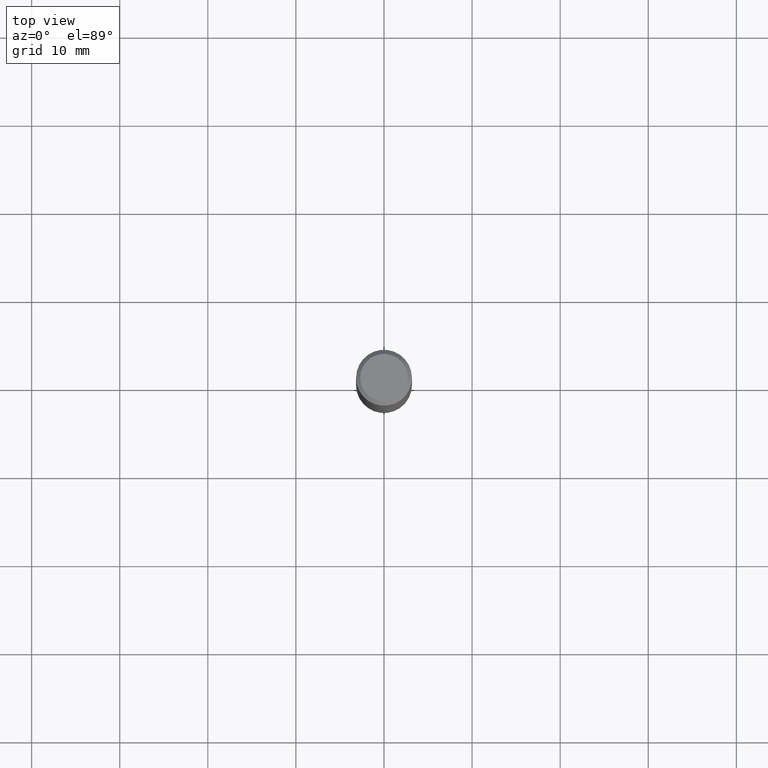
[diagram: clean part render]
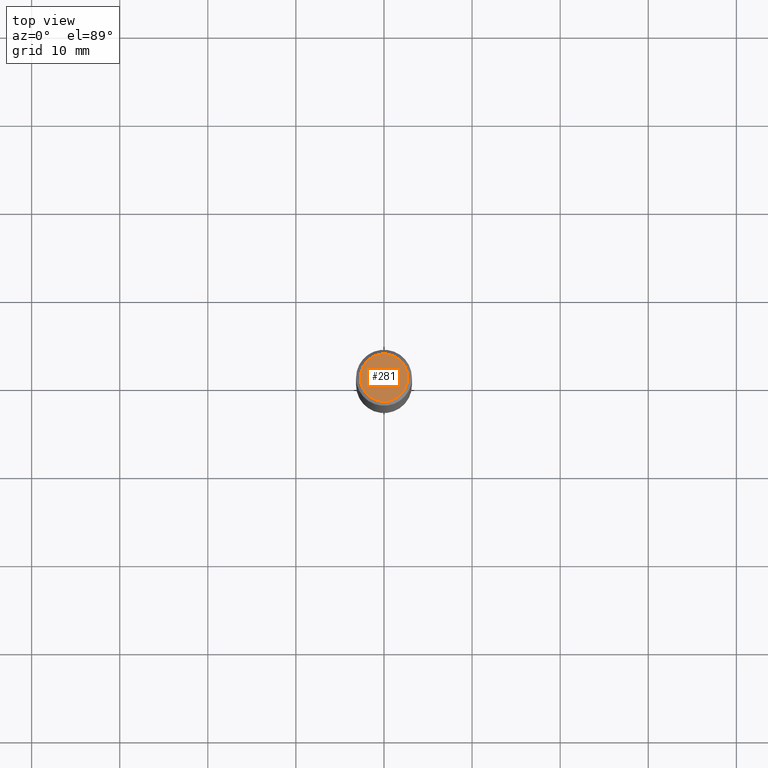
[diagram: same view with one face highlighted and labeled with its STEP entity id]
A machine part, top view. The second image highlights one B-rep face of the part: STEP entity #281.
In plain terms, the highlighted planar face has unit normal (0, -0, -1).
Its self-contained STEP definition (entity closure, byte-faithful):
#45 = CARTESIAN_POINT ( 'NONE',  ( 6.364025535057318316E-46, -9.086141822531067035E-32, -2.602374448188125350E-17 ) ) ;
#71 = PLANE ( 'NONE',  #241 ) ;
#105 = DIRECTION ( 'NONE',  ( -1.000000000000000000, 6.982962677686265922E-15, -4.876176775795935793E-29 ) ) ;
#115 = CIRCLE ( 'NONE', #159, 0.1062499999999999972 ) ;
#137 = CARTESIAN_POINT ( 'NONE',  ( 0.1062499999999999972, -8.259777185439880671E-16, -2.602374448187577153E-17 ) ) ;
#150 = VERTEX_POINT ( 'NONE', #137 ) ;
#153 = ORIENTED_EDGE ( 'NONE', *, *, #337, .T. ) ;
#159 = AXIS2_PLACEMENT_3D ( 'NONE', #45, #244, #392 ) ;
#173 = EDGE_LOOP ( 'NONE', ( #278, #153 ) ) ;
#199 = CARTESIAN_POINT ( 'NONE',  ( -0.1062499999999999972, 7.746724220558198188E-16, -2.602374448188655674E-17 ) ) ;
#224 = AXIS2_PLACEMENT_3D ( 'NONE', #465, #361, #428 ) ;
#241 = AXIS2_PLACEMENT_3D ( 'NONE', #382, #351, #105 ) ;
#244 = DIRECTION ( 'NONE',  ( -2.445468806185136597E-29, 3.491481338843145583E-15, 1.000000000000000000 ) ) ;
#278 = ORIENTED_EDGE ( 'NONE', *, *, #485, .T. ) ;
#281 = ADVANCED_FACE ( 'NONE', ( #492 ), #71, .F. ) ;
#337 = EDGE_CURVE ( 'NONE', #150, #384, #115, .T. ) ;
#351 = DIRECTION ( 'NONE',  ( 2.438088387897960049E-29, -3.491481338843145188E-15, -1.000000000000000000 ) ) ;
#361 = DIRECTION ( 'NONE',  ( -2.445468806185136597E-29, 3.491481338843145583E-15, 1.000000000000000000 ) ) ;
#382 = CARTESIAN_POINT ( 'NONE',  ( 3.182012767528659158E-46, -4.543070911265533518E-32, -1.301187224094062675E-17 ) ) ;
#384 = VERTEX_POINT ( 'NONE', #199 ) ;
#392 = DIRECTION ( 'NONE',  ( 1.000000000000000000, -6.982962677686266711E-15, 4.877714189860772023E-29 ) ) ;
#404 = CIRCLE ( 'NONE', #224, 0.1062499999999999972 ) ;
#428 = DIRECTION ( 'NONE',  ( 1.000000000000000000, -6.982962677686266711E-15, 4.877714189860772023E-29 ) ) ;
#465 = CARTESIAN_POINT ( 'NONE',  ( 6.364025535057318316E-46, -9.086141822531067035E-32, -2.602374448188125350E-17 ) ) ;
#485 = EDGE_CURVE ( 'NONE', #384, #150, #404, .T. ) ;
#492 = FACE_OUTER_BOUND ( 'NONE', #173, .T. ) ;